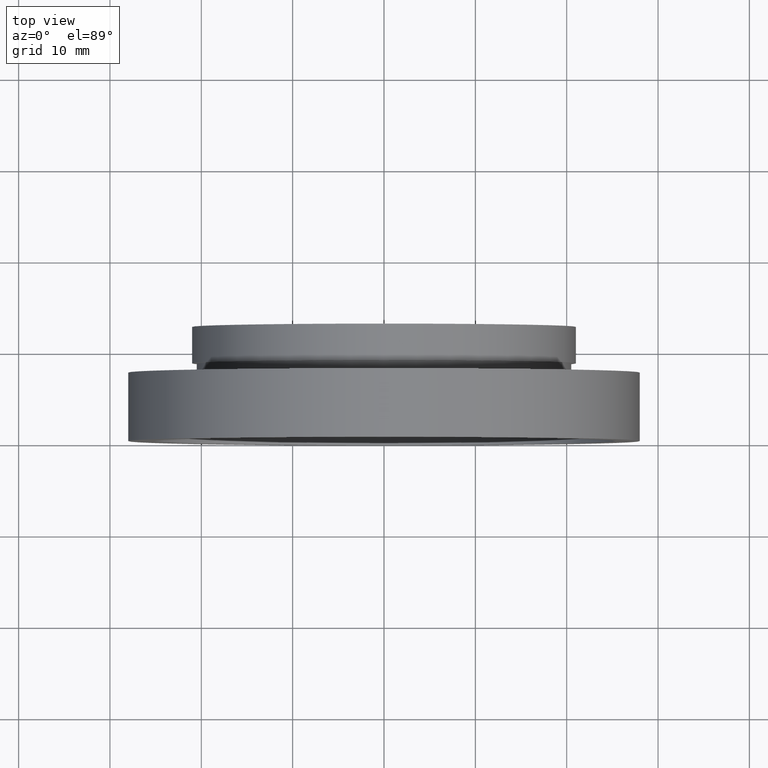
[diagram: clean part render]
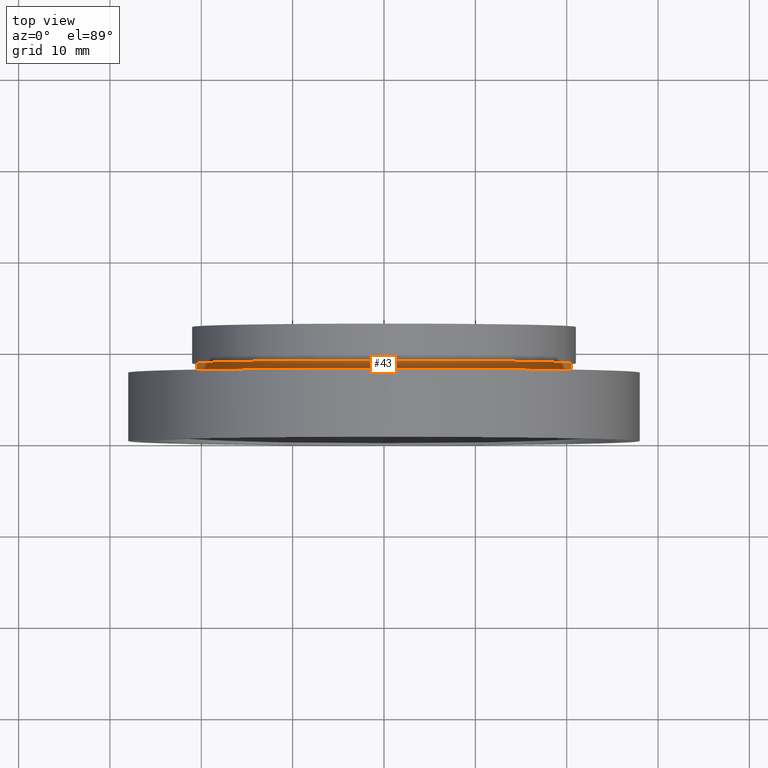
[diagram: same view with one face highlighted and labeled with its STEP entity id]
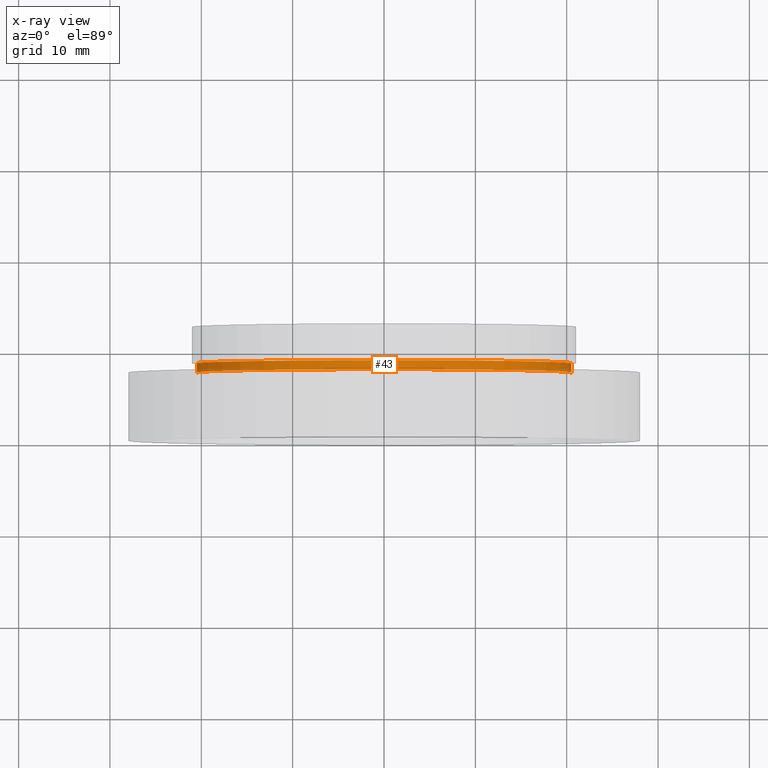
[diagram: x-ray of the same camera — body ghosted, the highlighted face saturated]
A machine part, top view. The second image highlights one B-rep face of the part: STEP entity #43.
The next image is the same camera in x-ray: the body ghosted, the highlighted face saturated — about 7% of this face is hidden behind the body in this view.
In plain terms, the highlighted cylindrical surface (partial cylindrical patch) has radius 20.5 mm, axis along (-0, 1, -0).
Its self-contained STEP definition (entity closure, byte-faithful):
#4 = ORIENTED_EDGE ( 'NONE', *, *, #256, .F. ) ;
#10 = CARTESIAN_POINT ( 'NONE',  ( -20.50000000000000000, 7.499999999999995600, 0.0000000000000000000 ) ) ;
#16 = CARTESIAN_POINT ( 'NONE',  ( -20.50000000000000000, 8.499999999999996400, 0.0000000000000000000 ) ) ;
#18 = VECTOR ( 'NONE', #617, 1000.000000000000000 ) ;
#43 = ADVANCED_FACE ( 'NONE', ( #335 ), #175, .T. ) ;
#68 = EDGE_CURVE ( 'NONE', #336, #394, #323, .T. ) ;
#93 = CARTESIAN_POINT ( 'NONE',  ( 0.0000000000000000000, 16.88601823708207700, 0.0000000000000000000 ) ) ;
#136 = VECTOR ( 'NONE', #212, 1000.000000000000000 ) ;
#151 = VERTEX_POINT ( 'NONE', #596 ) ;
#165 = ORIENTED_EDGE ( 'NONE', *, *, #427, .T. ) ;
#175 = CYLINDRICAL_SURFACE ( 'NONE', #587, 20.50000000000000000 ) ;
#191 = VERTEX_POINT ( 'NONE', #339 ) ;
#194 = CARTESIAN_POINT ( 'NONE',  ( 1.149455719078122700E-015, 7.499999999999998200, 0.0000000000000000000 ) ) ;
#199 = DIRECTION ( 'NONE',  ( -1.224646799147351000E-016, 1.000000000000000000, -0.0000000000000000000 ) ) ;
#203 = DIRECTION ( 'NONE',  ( -1.000000000000000000, -1.692413147294446000E-016, 0.0000000000000000000 ) ) ;
#212 = DIRECTION ( 'NONE',  ( -1.224646799147351000E-016, 1.000000000000000000, -0.0000000000000000000 ) ) ;
#219 = EDGE_CURVE ( 'NONE', #151, #191, #289, .T. ) ;
#256 = EDGE_CURVE ( 'NONE', #394, #191, #546, .T. ) ;
#289 = LINE ( 'NONE', #452, #18 ) ;
#301 = CARTESIAN_POINT ( 'NONE',  ( -20.50000000000000000, 16.88601823708207300, 0.0000000000000000000 ) ) ;
#313 = ORIENTED_EDGE ( 'NONE', *, *, #219, .T. ) ;
#314 = CARTESIAN_POINT ( 'NONE',  ( 1.026991039163387700E-015, 8.499999999999998200, 0.0000000000000000000 ) ) ;
#323 = LINE ( 'NONE', #301, #136 ) ;
#335 = FACE_OUTER_BOUND ( 'NONE', #381, .T. ) ;
#336 = VERTEX_POINT ( 'NONE', #10 ) ;
#339 = CARTESIAN_POINT ( 'NONE',  ( 20.50000000000000000, 8.500000000000000000, 2.510525938252074500E-015 ) ) ;
#365 = AXIS2_PLACEMENT_3D ( 'NONE', #314, #491, #582 ) ;
#381 = EDGE_LOOP ( 'NONE', ( #165, #313, #4, #418 ) ) ;
#394 = VERTEX_POINT ( 'NONE', #16 ) ;
#418 = ORIENTED_EDGE ( 'NONE', *, *, #68, .F. ) ;
#427 = EDGE_CURVE ( 'NONE', #336, #151, #585, .T. ) ;
#452 = CARTESIAN_POINT ( 'NONE',  ( 20.50000000000000000, 16.88601823708208000, 2.510525938252074500E-015 ) ) ;
#491 = DIRECTION ( 'NONE',  ( -1.224646799147351000E-016, 1.000000000000000000, -0.0000000000000000000 ) ) ;
#513 = DIRECTION ( 'NONE',  ( -1.000000000000000000, -1.269309860470834500E-016, 0.0000000000000000000 ) ) ;
#546 = CIRCLE ( 'NONE', #365, 20.50000000000000000 ) ;
#551 = AXIS2_PLACEMENT_3D ( 'NONE', #194, #606, #513 ) ;
#582 = DIRECTION ( 'NONE',  ( -1.000000000000000000, -8.462065736472229800E-017, 0.0000000000000000000 ) ) ;
#585 = CIRCLE ( 'NONE', #551, 20.50000000000000000 ) ;
#587 = AXIS2_PLACEMENT_3D ( 'NONE', #93, #199, #203 ) ;
#596 = CARTESIAN_POINT ( 'NONE',  ( 20.50000000000000000, 7.500000000000000900, 2.510525938252074500E-015 ) ) ;
#606 = DIRECTION ( 'NONE',  ( -1.224646799147351000E-016, 1.000000000000000000, -0.0000000000000000000 ) ) ;
#617 = DIRECTION ( 'NONE',  ( -1.224646799147351000E-016, 1.000000000000000000, -0.0000000000000000000 ) ) ;